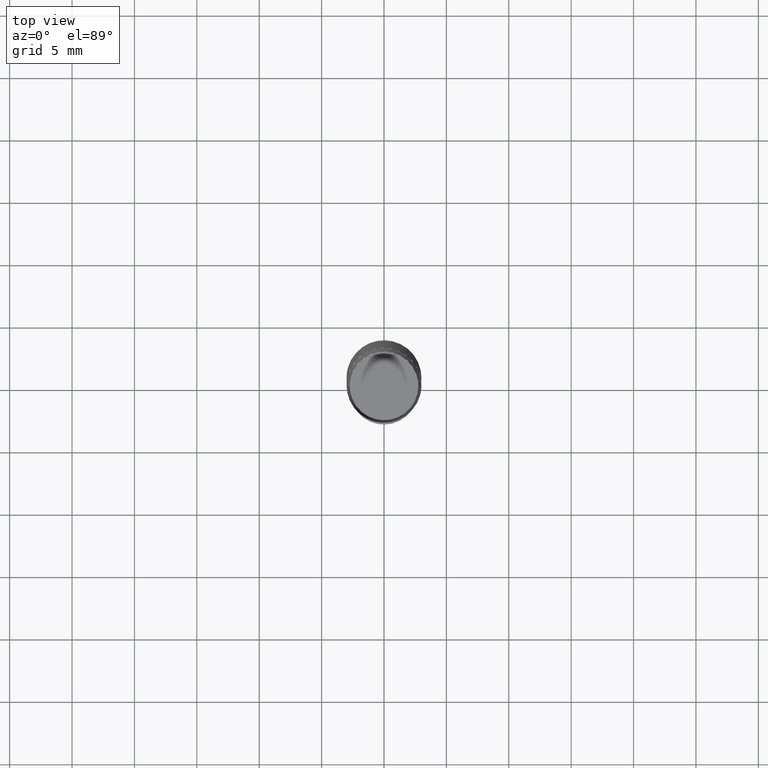
[diagram: clean part render]
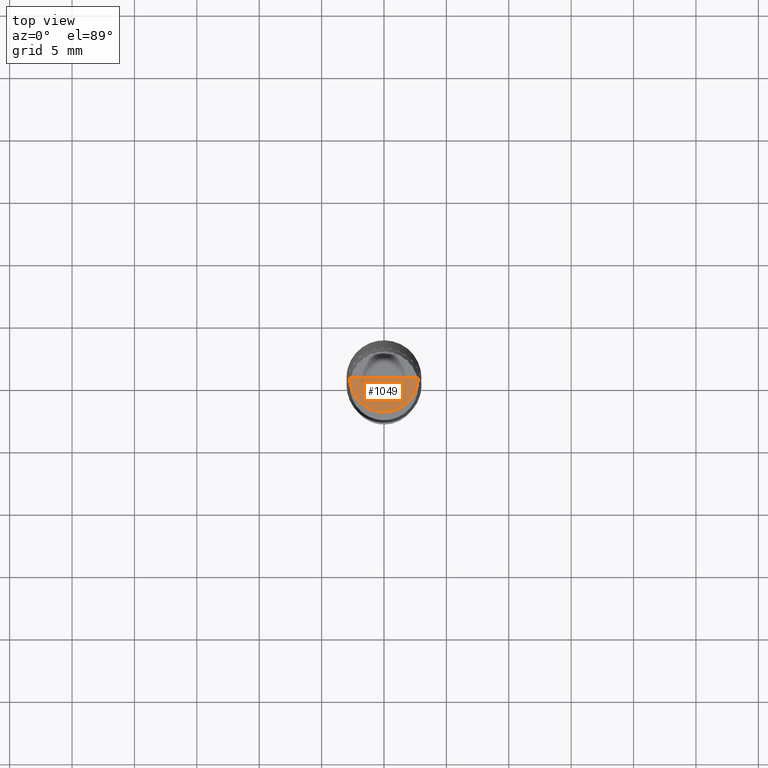
[diagram: same view with one face highlighted and labeled with its STEP entity id]
A machine part, top view. The second image highlights one B-rep face of the part: STEP entity #1049.
In plain terms, the highlighted face is a freeform B-spline surface patch.
Its self-contained STEP definition (entity closure, byte-faithful):
#695=CARTESIAN_POINT('',(2.75,0.0,35.0));
#699=CARTESIAN_POINT('',(-2.75,0.0,35.0));
#700=CARTESIAN_POINT('',(0.0,0.0,35.0));
#710=CARTESIAN_POINT('',(-2.75,-2.75,35.0));
#711=CARTESIAN_POINT('',(0.0,-2.75,35.0));
#712=CARTESIAN_POINT('',(2.75,-2.75,35.0));
#1034=(
BOUNDED_SURFACE()
B_SPLINE_SURFACE(1,2,(
(#699,#710,#711,#712,#695),
(#700,#700,#700,#700,#700)
), .UNSPECIFIED.,.F.,.F.,.F.)
B_SPLINE_SURFACE_WITH_KNOTS((2,2),(3,2,3),(
0.0,1.0),(
0.0,0.5,1.0), .UNSPECIFIED.)
GEOMETRIC_REPRESENTATION_ITEM()
RATIONAL_B_SPLINE_SURFACE(((1.0,0.707106781187,1.0,0.707106781187,1.0),
(1.0,0.707106781187,1.0,0.707106781187,1.0)
))
REPRESENTATION_ITEM('')
SURFACE()
);
#1035=(
BOUNDED_CURVE()
B_SPLINE_CURVE(2,(#695,#712,#711,#710,#699),.UNSPECIFIED.,.F.,.F.)
B_SPLINE_CURVE_WITH_KNOTS((3,2,3),
(0.0,0.5,1.0),.UNSPECIFIED.)
CURVE()
GEOMETRIC_REPRESENTATION_ITEM()
RATIONAL_B_SPLINE_CURVE((1.0,0.707106781187,1.0,0.707106781187,1.0))
REPRESENTATION_ITEM('')
);
#1036=(
BOUNDED_CURVE()
B_SPLINE_CURVE(1,(#699,#700),.UNSPECIFIED.,.F.,.F.)
B_SPLINE_CURVE_WITH_KNOTS((2,2),
(0.0,1.0),.UNSPECIFIED.)
CURVE()
GEOMETRIC_REPRESENTATION_ITEM()
RATIONAL_B_SPLINE_CURVE((1.0,1.0))
REPRESENTATION_ITEM('')
);
#1037=(
BOUNDED_CURVE()
B_SPLINE_CURVE(1,(#700,#695),.UNSPECIFIED.,.F.,.F.)
B_SPLINE_CURVE_WITH_KNOTS((2,2),
(0.0,1.0),.UNSPECIFIED.)
CURVE()
GEOMETRIC_REPRESENTATION_ITEM()
RATIONAL_B_SPLINE_CURVE((1.0,1.0))
REPRESENTATION_ITEM('')
);
#1038=VERTEX_POINT('',#695);
#1039=VERTEX_POINT('',#699);
#1040=VERTEX_POINT('',#700);
#1041=EDGE_CURVE('',#1038,#1039,#1035,.T.);
#1042=EDGE_CURVE('',#1039,#1040,#1036,.T.);
#1043=EDGE_CURVE('',#1040,#1038,#1037,.T.);
#1044=ORIENTED_EDGE('',*,*,#1041,.T.);
#1045=ORIENTED_EDGE('',*,*,#1042,.T.);
#1046=ORIENTED_EDGE('',*,*,#1043,.T.);
#1047=EDGE_LOOP('',(#1044,#1045,#1046));
#1048=FACE_OUTER_BOUND('',#1047,.T.);
#1049=ADVANCED_FACE('',(#1048),#1034,.T.);